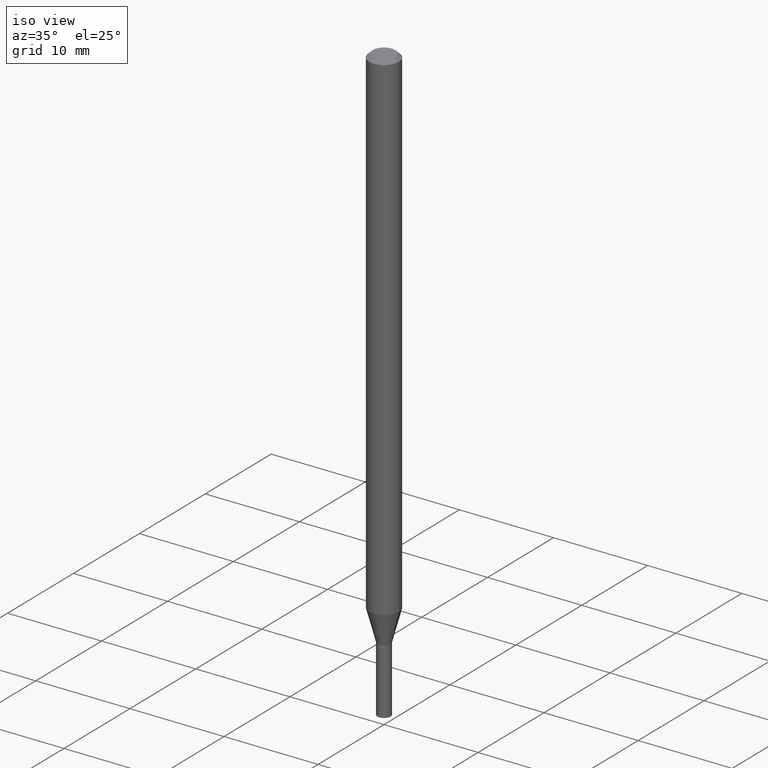
[diagram: clean part render]
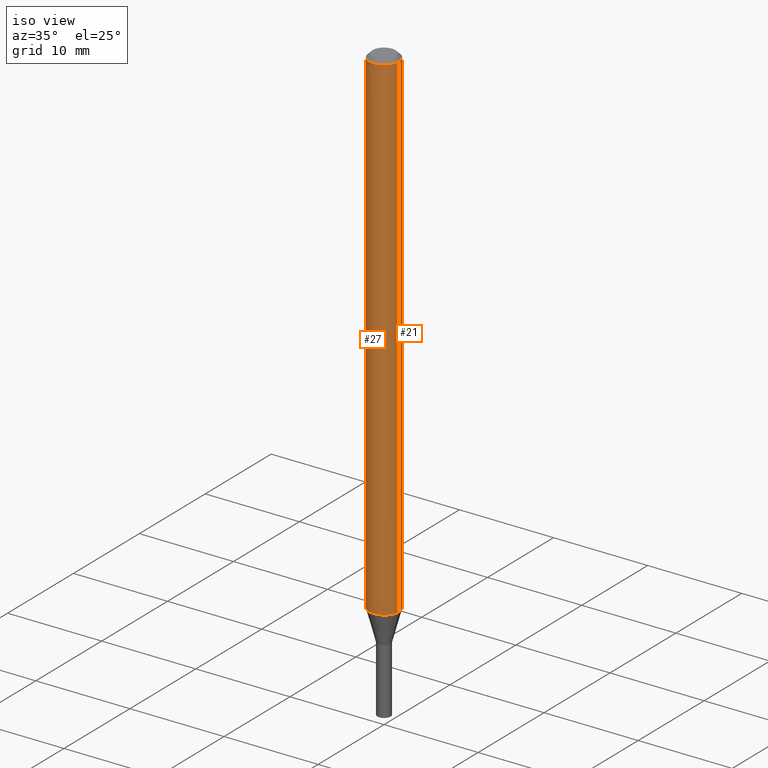
[diagram: same view with one multi-face feature highlighted, each face labeled with its STEP entity id]
A machine part, iso view. The highlighted faces form ONE feature: a constant-radius fillet chain: 2 tangent blend faces with common blend radius 1.5875 mm. The faces share edges in the B-rep.
Their STEP definitions:
[1] entity #21 (Cylinder):
#16 = DIRECTION ( 'NONE',  ( -2.445468806185136877E-29, 3.491481338843145188E-15, 1.000000000000000000 ) ) ;
#21 = ADVANCED_FACE ( 'NONE', ( #89 ), #336, .T. ) ;
#38 = AXIS2_PLACEMENT_3D ( 'NONE', #270, #224, #83 ) ;
#41 = ORIENTED_EDGE ( 'NONE', *, *, #203, .T. ) ;
#43 = EDGE_CURVE ( 'NONE', #403, #163, #370, .T. ) ;
#49 = ORIENTED_EDGE ( 'NONE', *, *, #422, .F. ) ;
#83 = DIRECTION ( 'NONE',  ( 1.000000000000000000, -6.982962677686266711E-15, 4.876176775795935793E-29 ) ) ;
#89 = FACE_OUTER_BOUND ( 'NONE', #110, .T. ) ;
#97 = DIRECTION ( 'NONE',  ( -2.445468806185136597E-29, 3.491481338843145583E-15, 1.000000000000000000 ) ) ;
#110 = EDGE_LOOP ( 'NONE', ( #41, #361, #49, #298 ) ) ;
#118 = CARTESIAN_POINT ( 'NONE',  ( 0.06250000000000000000, -7.748917645022951248E-15, -2.094378221735090584 ) ) ;
#130 = CARTESIAN_POINT ( 'NONE',  ( -0.06250000000000000000, 4.440892098500626162E-16, -3.074334431409316114E-30 ) ) ;
#140 = CARTESIAN_POINT ( 'NONE',  ( 3.668203209277705088E-31, -5.237222008264718399E-17, -0.01499999999999999944 ) ) ;
#163 = VERTEX_POINT ( 'NONE', #241 ) ;
#192 = CARTESIAN_POINT ( 'NONE',  ( 0.06250000000000000000, -4.364351673553916694E-16, 3.047610484872459871E-30 ) ) ;
#202 = AXIS2_PLACEMENT_3D ( 'NONE', #140, #97, #425 ) ;
#203 = EDGE_CURVE ( 'NONE', #403, #439, #209, .T. ) ;
#206 = DIRECTION ( 'NONE',  ( 1.000000000000000000, -6.982962677686262766E-15, 0.000000000000000000 ) ) ;
#209 = CIRCLE ( 'NONE', #428, 0.06250000000000000000 ) ;
#213 = VECTOR ( 'NONE', #16, 39.37007874015748143 ) ;
#217 = CARTESIAN_POINT ( 'NONE',  ( -0.06250000000000000000, -6.868393267817497752E-15, -2.094378221735090584 ) ) ;
#224 = DIRECTION ( 'NONE',  ( -2.445468806185136597E-29, 3.491481338843145583E-15, 1.000000000000000000 ) ) ;
#229 = LINE ( 'NONE', #130, #213 ) ;
#239 = DIRECTION ( 'NONE',  ( -2.445468806185136597E-29, 3.491481338843145583E-15, 1.000000000000000000 ) ) ;
#241 = CARTESIAN_POINT ( 'NONE',  ( 0.06250000000000000000, -4.888073874380388472E-16, -0.01499999999999999944 ) ) ;
#270 = CARTESIAN_POINT ( 'NONE',  ( 0.000000000000000000, 0.000000000000000000, 0.000000000000000000 ) ) ;
#295 = VERTEX_POINT ( 'NONE', #335 ) ;
#298 = ORIENTED_EDGE ( 'NONE', *, *, #43, .F. ) ;
#311 = DIRECTION ( 'NONE',  ( -2.445468806185136877E-29, 3.491481338843145188E-15, 1.000000000000000000 ) ) ;
#320 = EDGE_CURVE ( 'NONE', #439, #295, #229, .T. ) ;
#335 = CARTESIAN_POINT ( 'NONE',  ( -0.06250000000000000000, -3.238338139025041305E-15, -0.01499999999999999944 ) ) ;
#336 = CYLINDRICAL_SURFACE ( 'NONE', #38, 0.06250000000000000000 ) ;
#349 = CIRCLE ( 'NONE', #202, 0.06250000000000000000 ) ;
#361 = ORIENTED_EDGE ( 'NONE', *, *, #320, .T. ) ;
#370 = LINE ( 'NONE', #192, #443 ) ;
#383 = CARTESIAN_POINT ( 'NONE',  ( 5.121736609606660644E-29, -7.312482477667559579E-15, -2.094378221735090584 ) ) ;
#403 = VERTEX_POINT ( 'NONE', #118 ) ;
#422 = EDGE_CURVE ( 'NONE', #163, #295, #349, .T. ) ;
#425 = DIRECTION ( 'NONE',  ( 1.000000000000000000, -6.982962677686266711E-15, 0.000000000000000000 ) ) ;
#428 = AXIS2_PLACEMENT_3D ( 'NONE', #383, #239, #206 ) ;
#439 = VERTEX_POINT ( 'NONE', #217 ) ;
#443 = VECTOR ( 'NONE', #311, 39.37007874015748143 ) ;
[2] entity #27 (Cylinder):
#1 = CIRCLE ( 'NONE', #261, 0.06250000000000000000 ) ;
#16 = DIRECTION ( 'NONE',  ( -2.445468806185136877E-29, 3.491481338843145188E-15, 1.000000000000000000 ) ) ;
#17 = CYLINDRICAL_SURFACE ( 'NONE', #114, 0.06250000000000000000 ) ;
#27 = ADVANCED_FACE ( 'NONE', ( #278 ), #17, .T. ) ;
#29 = AXIS2_PLACEMENT_3D ( 'NONE', #410, #79, #374 ) ;
#43 = EDGE_CURVE ( 'NONE', #403, #163, #370, .T. ) ;
#79 = DIRECTION ( 'NONE',  ( -2.445468806185136597E-29, 3.491481338843145583E-15, 1.000000000000000000 ) ) ;
#100 = CARTESIAN_POINT ( 'NONE',  ( 3.668203209277705088E-31, -5.237222008264718399E-17, -0.01499999999999999944 ) ) ;
#114 = AXIS2_PLACEMENT_3D ( 'NONE', #455, #170, #375 ) ;
#118 = CARTESIAN_POINT ( 'NONE',  ( 0.06250000000000000000, -7.748917645022951248E-15, -2.094378221735090584 ) ) ;
#130 = CARTESIAN_POINT ( 'NONE',  ( -0.06250000000000000000, 4.440892098500626162E-16, -3.074334431409316114E-30 ) ) ;
#146 = DIRECTION ( 'NONE',  ( 1.000000000000000000, -6.982962677686266711E-15, 0.000000000000000000 ) ) ;
#147 = ORIENTED_EDGE ( 'NONE', *, *, #320, .F. ) ;
#163 = VERTEX_POINT ( 'NONE', #241 ) ;
#170 = DIRECTION ( 'NONE',  ( -2.445468806185136597E-29, 3.491481338843145583E-15, 1.000000000000000000 ) ) ;
#190 = ORIENTED_EDGE ( 'NONE', *, *, #43, .T. ) ;
#192 = CARTESIAN_POINT ( 'NONE',  ( 0.06250000000000000000, -4.364351673553916694E-16, 3.047610484872459871E-30 ) ) ;
#213 = VECTOR ( 'NONE', #16, 39.37007874015748143 ) ;
#217 = CARTESIAN_POINT ( 'NONE',  ( -0.06250000000000000000, -6.868393267817497752E-15, -2.094378221735090584 ) ) ;
#220 = CIRCLE ( 'NONE', #29, 0.06250000000000000000 ) ;
#229 = LINE ( 'NONE', #130, #213 ) ;
#241 = CARTESIAN_POINT ( 'NONE',  ( 0.06250000000000000000, -4.888073874380388472E-16, -0.01499999999999999944 ) ) ;
#261 = AXIS2_PLACEMENT_3D ( 'NONE', #100, #360, #146 ) ;
#278 = FACE_OUTER_BOUND ( 'NONE', #328, .T. ) ;
#295 = VERTEX_POINT ( 'NONE', #335 ) ;
#308 = ORIENTED_EDGE ( 'NONE', *, *, #406, .T. ) ;
#311 = DIRECTION ( 'NONE',  ( -2.445468806185136877E-29, 3.491481338843145188E-15, 1.000000000000000000 ) ) ;
#320 = EDGE_CURVE ( 'NONE', #439, #295, #229, .T. ) ;
#328 = EDGE_LOOP ( 'NONE', ( #147, #308, #190, #441 ) ) ;
#335 = CARTESIAN_POINT ( 'NONE',  ( -0.06250000000000000000, -3.238338139025041305E-15, -0.01499999999999999944 ) ) ;
#360 = DIRECTION ( 'NONE',  ( -2.445468806185136597E-29, 3.491481338843145583E-15, 1.000000000000000000 ) ) ;
#370 = LINE ( 'NONE', #192, #443 ) ;
#374 = DIRECTION ( 'NONE',  ( 1.000000000000000000, -6.982962677686262766E-15, 0.000000000000000000 ) ) ;
#375 = DIRECTION ( 'NONE',  ( 1.000000000000000000, -6.982962677686266711E-15, 4.876176775795935793E-29 ) ) ;
#403 = VERTEX_POINT ( 'NONE', #118 ) ;
#406 = EDGE_CURVE ( 'NONE', #439, #403, #220, .T. ) ;
#410 = CARTESIAN_POINT ( 'NONE',  ( 5.121736609606660644E-29, -7.312482477667559579E-15, -2.094378221735090584 ) ) ;
#426 = EDGE_CURVE ( 'NONE', #295, #163, #1, .T. ) ;
#439 = VERTEX_POINT ( 'NONE', #217 ) ;
#441 = ORIENTED_EDGE ( 'NONE', *, *, #426, .F. ) ;
#443 = VECTOR ( 'NONE', #311, 39.37007874015748143 ) ;
#455 = CARTESIAN_POINT ( 'NONE',  ( 0.000000000000000000, 0.000000000000000000, 0.000000000000000000 ) ) ;